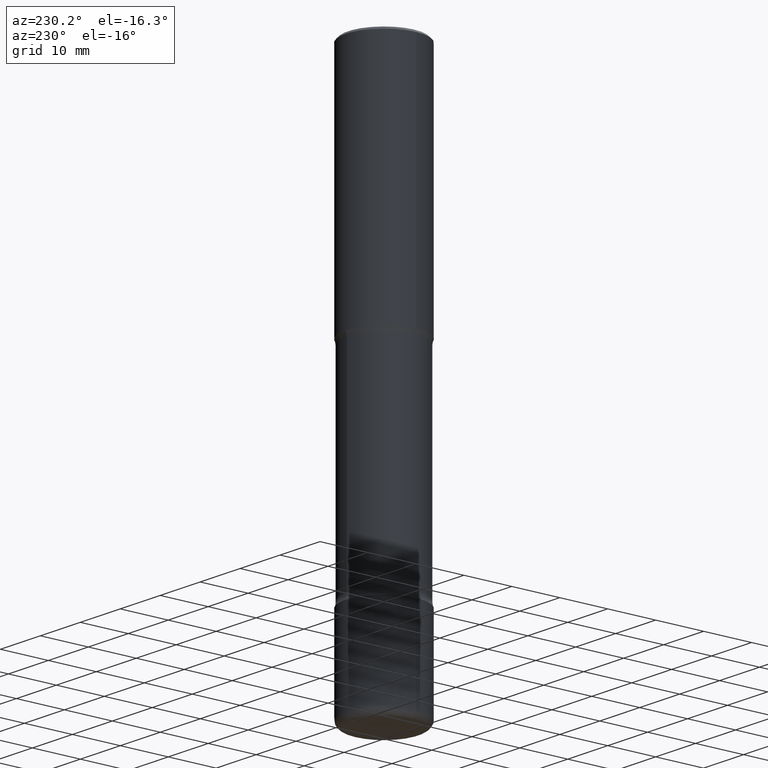
[diagram: clean part render]
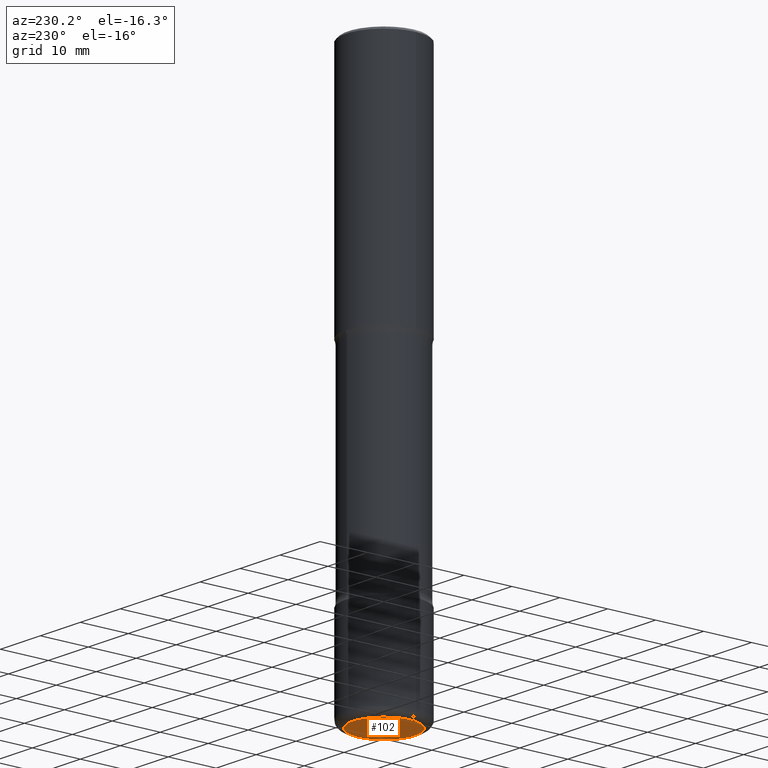
[diagram: same view with one face highlighted and labeled with its STEP entity id]
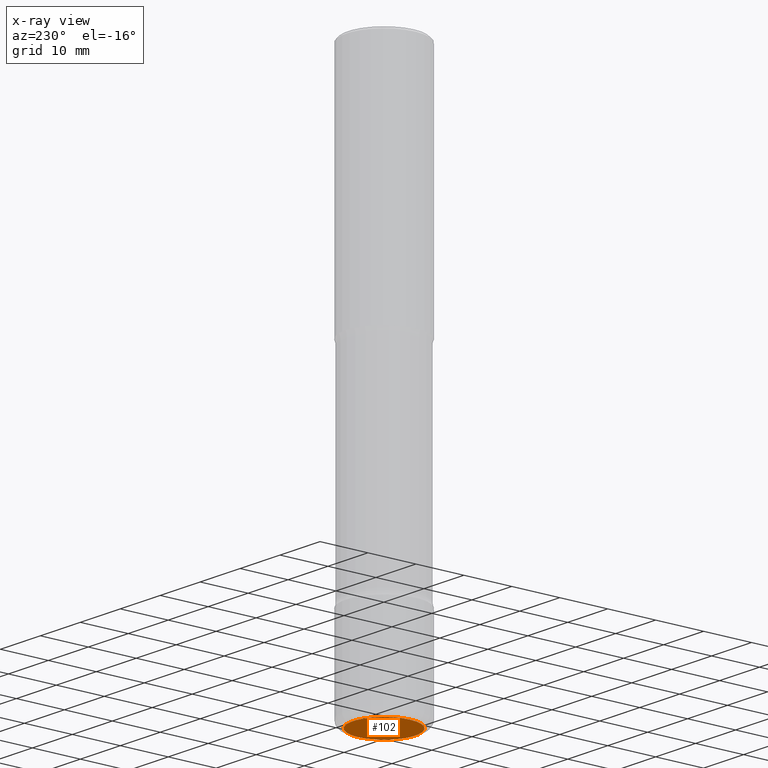
[diagram: x-ray of the same camera — body ghosted, the highlighted face saturated]
A machine part, auxiliary view. The second image highlights one B-rep face of the part: STEP entity #102.
The next image is the same camera in x-ray: the body ghosted, the highlighted face saturated — about 0% of this face is hidden behind the body in this view.
In plain terms, the highlighted planar face has unit normal (0, -0, -1).
Its self-contained STEP definition (entity closure, byte-faithful):
#16 = DIRECTION ( 'NONE',  ( 1.000000000000000000, -6.982962677686273021E-15, 0.000000000000000000 ) ) ;
#19 = CARTESIAN_POINT ( 'NONE',  ( 0.2558500000000002439, -1.759462191083226085E-14, -4.527600000000000513 ) ) ;
#29 = EDGE_CURVE ( 'NONE', #162, #71, #109, .T. ) ;
#40 = EDGE_LOOP ( 'NONE', ( #441, #245 ) ) ;
#60 = EDGE_CURVE ( 'NONE', #71, #162, #418, .T. ) ;
#61 = FACE_OUTER_BOUND ( 'NONE', #40, .T. ) ;
#63 = DIRECTION ( 'NONE',  ( -1.000000000000000000, 6.982962677686265922E-15, -4.876176775795935793E-29 ) ) ;
#67 = CARTESIAN_POINT ( 'NONE',  ( -0.2558500000000002439, -1.367696866832408364E-14, -4.527600000000000513 ) ) ;
#71 = VERTEX_POINT ( 'NONE', #19 ) ;
#102 = ADVANCED_FACE ( 'NONE', ( #61 ), #105, .T. ) ;
#105 = PLANE ( 'NONE',  #282 ) ;
#109 = CIRCLE ( 'NONE', #289, 0.2558500000000002439 ) ;
#127 = CARTESIAN_POINT ( 'NONE',  ( 1.107210456688382522E-28, -1.580803090974622705E-14, -4.527600000000000513 ) ) ;
#131 = DIRECTION ( 'NONE',  ( 1.000000000000000000, -6.982962677686273021E-15, 0.000000000000000000 ) ) ;
#162 = VERTEX_POINT ( 'NONE', #67 ) ;
#245 = ORIENTED_EDGE ( 'NONE', *, *, #29, .F. ) ;
#277 = CARTESIAN_POINT ( 'NONE',  ( 1.107210456688382522E-28, -1.580803090974622705E-14, -4.527600000000000513 ) ) ;
#282 = AXIS2_PLACEMENT_3D ( 'NONE', #277, #447, #63 ) ;
#289 = AXIS2_PLACEMENT_3D ( 'NONE', #127, #341, #131 ) ;
#341 = DIRECTION ( 'NONE',  ( -2.445468806185136597E-29, 3.491481338843145583E-15, 1.000000000000000000 ) ) ;
#418 = CIRCLE ( 'NONE', #453, 0.2558500000000002439 ) ;
#441 = ORIENTED_EDGE ( 'NONE', *, *, #60, .F. ) ;
#446 = CARTESIAN_POINT ( 'NONE',  ( 1.107210456688382522E-28, -1.580803090974622705E-14, -4.527600000000000513 ) ) ;
#447 = DIRECTION ( 'NONE',  ( 2.438088387897960049E-29, -3.491481338843145188E-15, -1.000000000000000000 ) ) ;
#453 = AXIS2_PLACEMENT_3D ( 'NONE', #446, #487, #16 ) ;
#487 = DIRECTION ( 'NONE',  ( -2.445468806185136597E-29, 3.491481338843145583E-15, 1.000000000000000000 ) ) ;